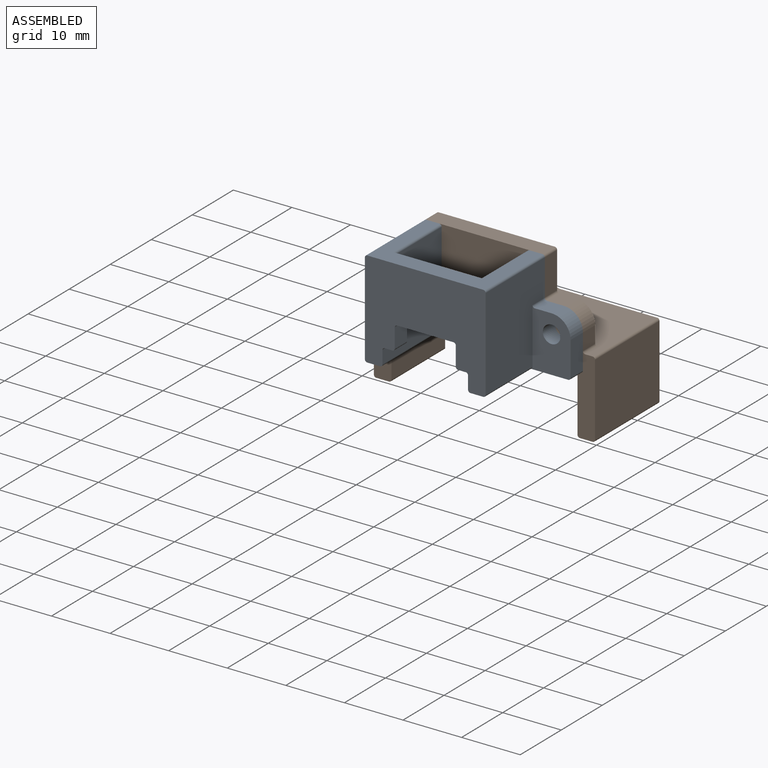
[diagram: assembled view]
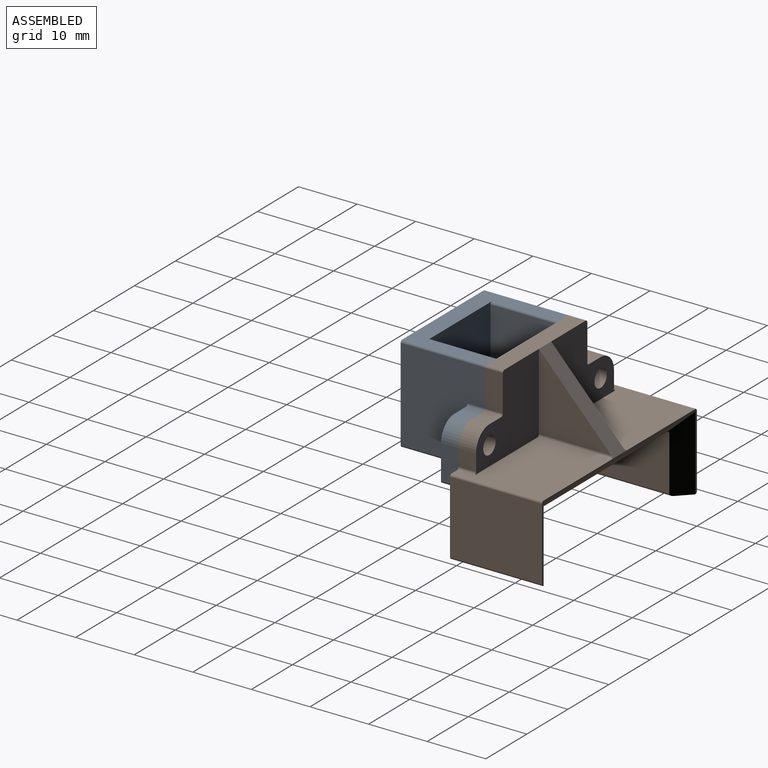
[diagram: assembled view, second angle]
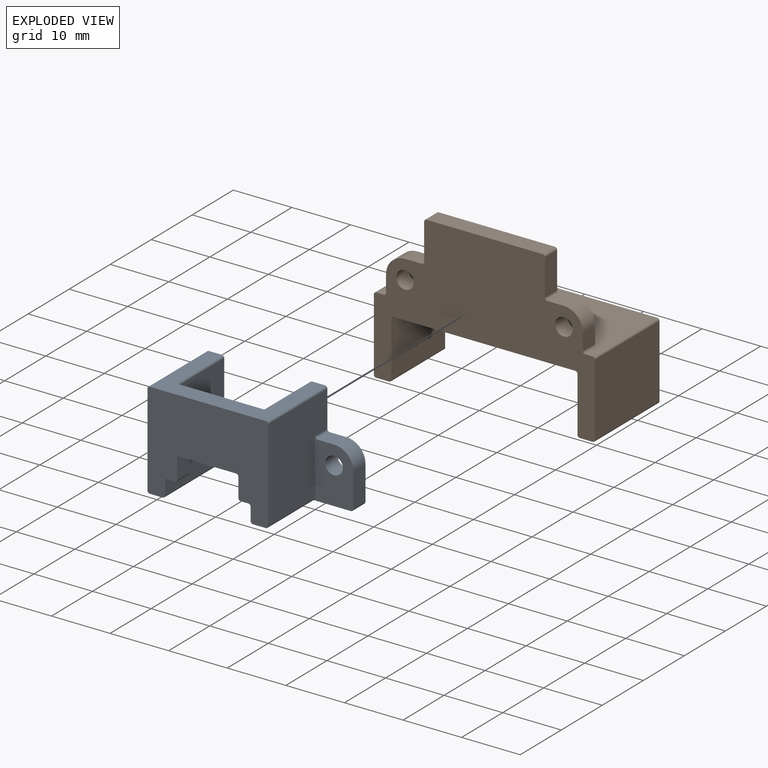
[diagram: exploded view]
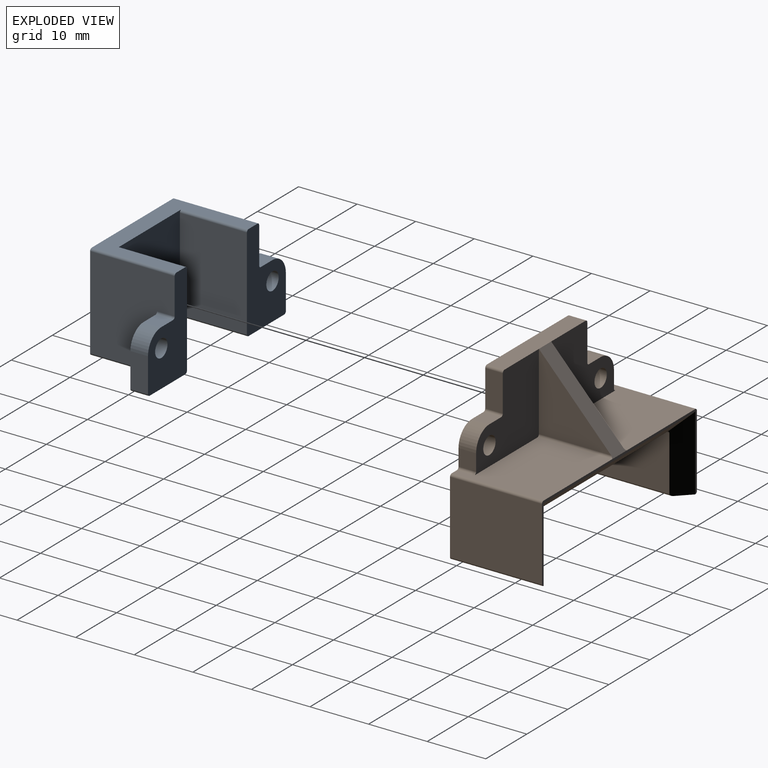
[diagram: exploded view, second angle]
ASSEMBLY  parts=2 mates=2
PART A: 44 faces, bbox 33.6x16.5x14.4 mm
  f0: plane 3x1.3mm, normal (0,-1,0), area 3.9mm2, adj f1,f22,f29,f31
  f1: plane 15.41x13.91mm, normal (0,0,-1), area 155.1mm2, adj f0,f2,f5,f13,f21,f23,f24,f25
  f2: plane 19.81x14.43mm, normal (0,1,0), area 109.7mm2, adj f1,f10,f20,f22,f35,f36,f42,f43
  f3: plane 5.85x3mm, normal (-1,0,0), area 17.6mm2, adj f8,f10,f11,f39
  f4: plane 14.43x8.7mm, normal (0,-1,0), area 51.2mm2, adj f10,f11,f22,f32,f39,f40
  f5: plane 15.71x14.43mm, normal (1,0,0), area 186.2mm2, adj f1,f10,f22,f30,f40,f43
  f6: plane 15.71x14.43mm, normal (-1,0,0), area 198.2mm2, adj f10,f11,f22,f32,f41,f42
  f7: plane 3x2.85mm, normal (0,1,0), area 8.6mm2, adj f8,f10,f11,f41
  f8: cylinder r=3.25mm len=3.25mm, axis (0,0,1), area 15.3mm2, adj f3,f7,f10,f11
  f9: cylinder r=1.5mm len=3mm, axis (0,0,1), area 28.3mm2, adj f10,f11
  f10: plane 16.51x9.5mm, normal (0,0,-1), area 101.8mm2, adj f2,f3,f4,f5,f6,f7,f8,f9
  f11: plane 9.9x6.9mm, normal (0,0,1), area 52.4mm2, adj f3,f4,f6,f7,f8,f9,f32,f39
  f12: plane 9.9x6.9mm, normal (0,0,1), area 52.4mm2, adj f14,f15,f16,f17,f18,f19,f33,f34
  f13: plane 15.71x14.43mm, normal (-1,0,0), area 186.2mm2, adj f1,f20,f22,f31,f36,f37
  f14: plane 14.43x8.7mm, normal (0,-1,0), area 51.2mm2, adj f12,f20,f22,f33,f37,f38
  f15: plane 5.85x3mm, normal (1,0,0), area 17.6mm2, adj f12,f16,f20,f38
  f16: cylinder r=3.25mm len=3.25mm, axis (0,0,1), area 15.3mm2, adj f12,f15,f17,f20
  f17: plane 3x2.85mm, normal (0,1,0), area 8.6mm2, adj f12,f16,f20,f34
  f18: plane 15.71x14.43mm, normal (1,0,0), area 198.2mm2, adj f12,f20,f22,f33,f34,f35
  f19: cylinder r=1.5mm len=3mm, axis (0,0,1), area 28.3mm2, adj f12,f20
  f20: plane 16.51x9.5mm, normal (0,0,-1), area 101.8mm2, adj f2,f13,f14,f15,f16,f17,f18,f19
  f21: plane 3x1.3mm, normal (0,-1,0), area 3.9mm2, adj f1,f22,f26,f30
  f22: plane 20.61x16.51mm, normal (0,0,1), area 253.9mm2, adj f0,f2,f4,f5,f6,f13,f14,f18
  f23: plane 3.26x3mm, normal (1,0,0), area 9.8mm2, adj f1,f22,f26,f27
  f24: plane 9.61x3mm, normal (0,-1,0), area 28.8mm2, adj f1,f22,f27,f28
  f25: plane 3.26x3mm, normal (-1,0,0), area 9.8mm2, adj f1,f22,f28,f29
  f26: cylinder r=0.4mm len=3mm, axis (0,0,1), area 1.9mm2, adj f1,f21,f22,f23
  f27: cylinder r=0.4mm len=3mm, axis (0,0,1), area 1.9mm2, adj f1,f22,f23,f24
  f28: cylinder r=0.4mm len=3mm, axis (0,0,1), area 1.9mm2, adj f1,f22,f24,f25
  f29: cylinder r=0.4mm len=3mm, axis (0,0,1), area 1.9mm2, adj f0,f1,f22,f25
  f30: cylinder r=0.4mm len=3mm, axis (0,0,-1), area 1.9mm2, adj f1,f5,f21,f22
  f31: cylinder r=0.4mm len=3mm, axis (0,0,1), area 1.9mm2, adj f0,f1,f13,f22
  f32: cylinder r=0.4mm len=11.43mm, axis (0,0,-1), area 7.2mm2, adj f4,f6,f11,f22
  f33: cylinder r=0.4mm len=11.43mm, axis (0,0,1), area 7.2mm2, adj f12,f14,f18,f22
  f34: cylinder r=0.4mm len=3mm, axis (0,0,1), area 1.9mm2, adj f12,f17,f18,f20
  f35: cylinder r=0.4mm len=14.43mm, axis (0,0,-1), area 9.1mm2, adj f2,f18,f20,f22
  f36: cylinder r=0.4mm len=11.43mm, axis (0,0,1), area 7.2mm2, adj f1,f2,f13,f20
  f37: cylinder r=0.4mm len=14.43mm, axis (0,0,1), area 9.1mm2, adj f13,f14,f20,f22
  f38: cylinder r=0.4mm len=3mm, axis (0,0,-1), area 1.9mm2, adj f12,f14,f15,f20
  f39: cylinder r=0.4mm len=3mm, axis (0,0,1), area 1.9mm2, adj f3,f4,f10,f11
  f40: cylinder r=0.4mm len=14.43mm, axis (0,0,-1), area 9.1mm2, adj f4,f5,f10,f22
  f41: cylinder r=0.4mm len=3mm, axis (0,0,1), area 1.9mm2, adj f6,f7,f10,f11
  f42: cylinder r=0.4mm len=14.43mm, axis (0,0,1), area 9.1mm2, adj f2,f6,f10,f22
  f43: cylinder r=0.4mm len=11.43mm, axis (0,0,-1), area 7.2mm2, adj f1,f2,f5,f10
PART B: 46 faces, bbox 37.8x26.7x15.7 mm
  f0: plane 16.58x15.7mm, normal (0,1,0), area 214.3mm2, adj f21,f22,f23,f31,f39,f43
  f1: plane 15.7x13.51mm, normal (0,0,1), area 151.8mm2, adj f2,f10,f15,f16,f17,f18,f19,f26
  f2: plane 3x2.85mm, normal (-1,0,0), area 8.6mm2, adj f1,f19,f21,f32
  f3: plane 15.7x12.36mm, normal (-1,0,0), area 194.1mm2, adj f21,f23,f34,f35
  f4: plane 15.7x2.2mm, normal (0,-1,0), area 32.1mm2, adj f21,f27,f35,f36
  f5: plane 13.1x9.36mm, normal (1,0,0), area 122.6mm2, adj f21,f27,f36,f37
  f6: plane 30.95x13.1mm, normal (0,-1,0), area 405.4mm2, adj f21,f28,f37,f40
  f7: plane 13.1x9.36mm, normal (-1,0,0), area 122.6mm2, adj f21,f29,f40,f41
  f8: plane 15.7x2.2mm, normal (0,-1,0), area 32.1mm2, adj f21,f29,f41,f42
  f9: plane 15.7x12.36mm, normal (1,0,0), area 194.1mm2, adj f21,f23,f42,f43
  f10: plane 16.58x15.7mm, normal (0,1,0), area 214.3mm2, adj f1,f21,f23,f30,f32,f34
  f11: plane 3x2.85mm, normal (1,0,0), area 8.6mm2, adj f12,f21,f22,f39
  f12: cylinder r=3.25mm len=3.25mm, axis (0,0,1), area 15.3mm2, adj f11,f13,f21,f22
  f13: plane 3x2.85mm, normal (0,1,0), area 8.6mm2, adj f12,f21,f22,f38
  f14: plane 6.21x3mm, normal (1,0,0), area 18.6mm2, adj f21,f22,f38,f45
  f15: plane 19.81x3mm, normal (0,1,0), area 59.4mm2, adj f1,f21,f22,f24,f44,f45
  f16: plane 6.21x3mm, normal (-1,0,0), area 18.6mm2, adj f1,f21,f33,f44
  f17: plane 3x2.85mm, normal (0,1,0), area 8.6mm2, adj f1,f19,f21,f33
  f18: cylinder r=1.5mm len=3mm, axis (0,0,1), area 28.3mm2, adj f1,f21
  f19: cylinder r=3.25mm len=3.25mm, axis (0,0,1), area 15.3mm2, adj f1,f2,f17,f21
  f20: cylinder r=1.5mm len=3mm, axis (0,0,1), area 28.3mm2, adj f21,f22
  f21: plane 37.75x26.67mm, normal (0,0,-1), area 518.3mm2, adj f0,f2,f3,f4,f5,f6,f7,f8
  f22: plane 15.7x13.51mm, normal (0,0,1), area 151.8mm2, adj f0,f11,f12,f13,f14,f15,f20,f25
  f23: plane 37.75x13.16mm, normal (0,0,1), area 25.2mm2, adj f0,f3,f9,f10,f24,f27,f28,f29
  f24: plane 13.51x12.7mm, normal (0,0.68,0.73), area 55.7mm2, adj f15,f23,f25,f26,f30,f31
  f25: plane 13.11x12.32mm, normal (1,0,0), area 80.8mm2, adj f22,f24,f31
  f26: plane 13.11x12.32mm, normal (-1,0,0), area 80.8mm2, adj f1,f24,f30
  f27: plane 12.76x2.72mm, normal (0.71,0,0.71), area 42.1mm2, adj f4,f5,f23,f28,f36,f37
  f28: plane 36.95x2.72mm, normal (0,-0.71,0.71), area 126.4mm2, adj f6,f23,f27,f29,f37,f40
  f29: plane 12.76x2.72mm, normal (-0.71,0,0.71), area 42.1mm2, adj f7,f8,f23,f28,f40,f41
  f30: cylinder r=0.4mm len=12.7mm, axis (0,0,1), area 7.9mm2, adj f1,f10,f24,f26
  f31: cylinder r=0.4mm len=12.7mm, axis (0,0,-1), area 7.9mm2, adj f0,f22,f24,f25
  f32: cylinder r=0.4mm len=3mm, axis (0,0,1), area 1.9mm2, adj f1,f2,f10,f21
  f33: cylinder r=0.4mm len=3mm, axis (0,0,-1), area 1.9mm2, adj f1,f16,f17,f21
  f34: cylinder r=0.4mm len=15.7mm, axis (0,0,1), area 9.9mm2, adj f3,f10,f21,f23
  f35: cylinder r=0.4mm len=15.7mm, axis (0,0,1), area 9.9mm2, adj f3,f4,f21,f23
  f36: cylinder r=0.4mm len=13.5mm, axis (0,0,1), area 8.3mm2, adj f4,f5,f21,f27
  f37: cylinder r=0.4mm len=13.1mm, axis (0,0,-1), area 8.2mm2, adj f5,f6,f21,f27,f28
  f38: cylinder r=0.4mm len=3mm, axis (0,0,1), area 1.9mm2, adj f13,f14,f21,f22
  f39: cylinder r=0.4mm len=3mm, axis (0,0,-1), area 1.9mm2, adj f0,f11,f21,f22
  f40: cylinder r=0.4mm len=13.1mm, axis (0,0,-1), area 8.2mm2, adj f6,f7,f21,f28,f29
  f41: cylinder r=0.4mm len=13.5mm, axis (0,0,1), area 8.3mm2, adj f7,f8,f21,f29
  f42: cylinder r=0.4mm len=15.7mm, axis (0,0,1), area 9.9mm2, adj f8,f9,f21,f23
  f43: cylinder r=0.4mm len=15.7mm, axis (0,0,1), area 9.9mm2, adj f0,f9,f21,f23
  f44: cylinder r=0.4mm len=3mm, axis (0,0,1), area 1.9mm2, adj f1,f15,f16,f21
  f45: cylinder r=0.4mm len=3mm, axis (0,0,1), area 1.9mm2, adj f14,f15,f21,f22
PLACE A rot(axis=(1,0,0),90deg) t=(-8.52,-13.86,15.26)mm
PLACE B rot(axis=(0,-0.71,-0.71),180deg) t=(-8.52,-7.86,15.26)mm
MATE slider A.f16 <-> B.f18  axis (0,-1,0) through (5.04,-10.86,18.51)mm
MATE planar B.f45 <-> A.f42  axis (0,-1,0) through (-18.42,-10.86,28.37)mm
